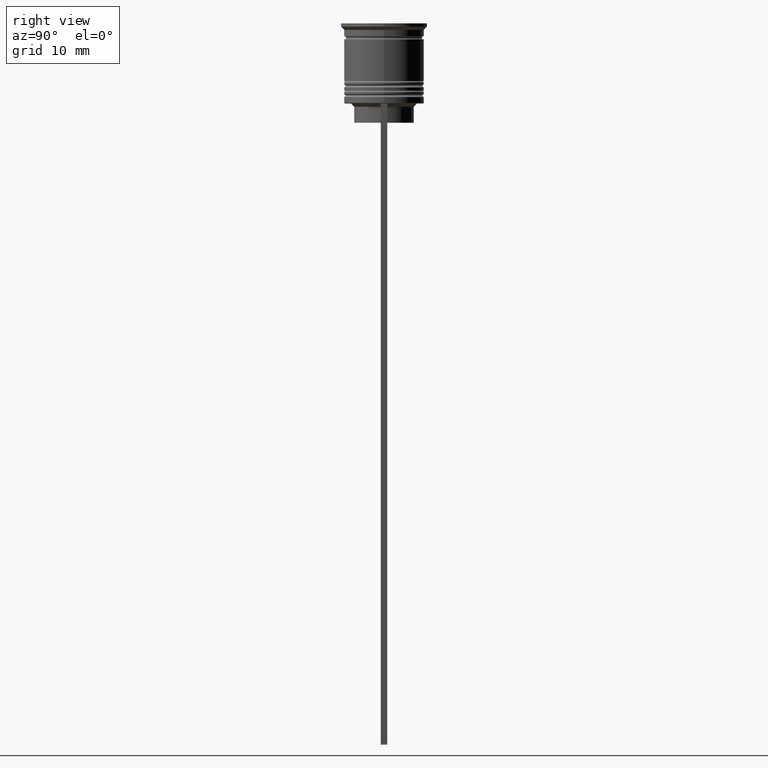
[diagram: clean part render]
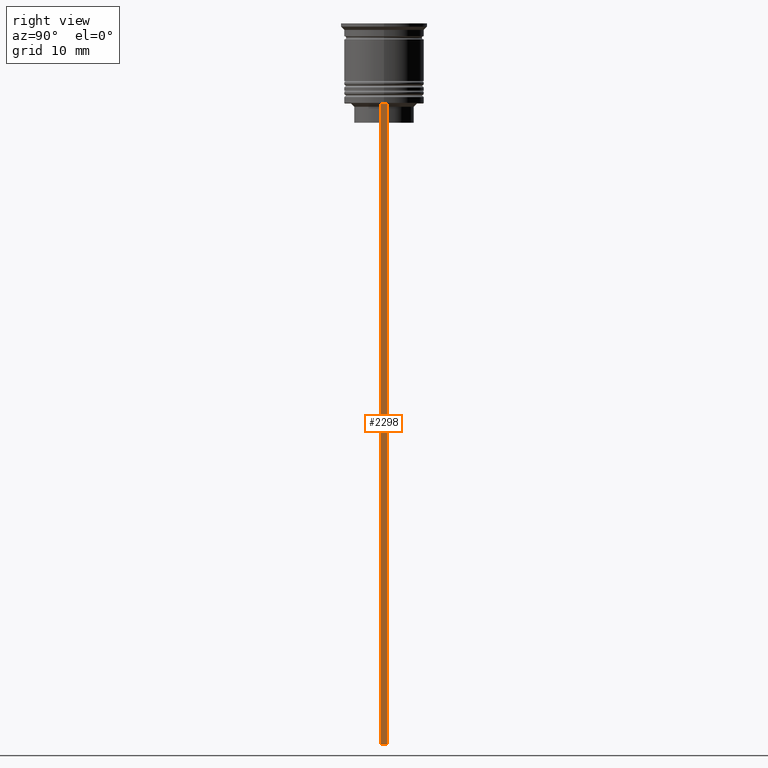
[diagram: same view with one face highlighted and labeled with its STEP entity id]
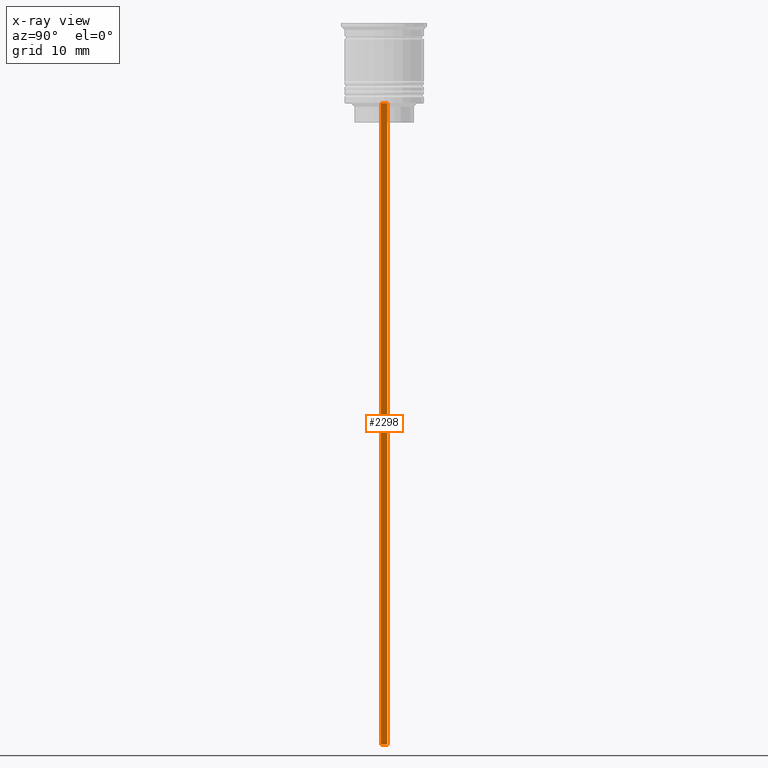
[diagram: x-ray of the same camera — body ghosted, the highlighted face saturated]
A machine part, right view. The second image highlights one B-rep face of the part: STEP entity #2298.
The next image is the same camera in x-ray: the body ghosted, the highlighted face saturated — about 0% of this face is hidden behind the body in this view.
In plain terms, the highlighted planar face has unit normal (-1, 0, 0).
Its self-contained STEP definition (entity closure, byte-faithful):
#139 = VECTOR ( 'NONE', #272, 1000.000000000000000 ) ;
#221 = DIRECTION ( 'NONE',  ( 0.000000000000000000, 0.000000000000000000, -1.000000000000000000 ) ) ;
#248 = AXIS2_PLACEMENT_3D ( 'NONE', #838, #1575, #1723 ) ;
#272 = DIRECTION ( 'NONE',  ( 0.000000000000000000, 1.000000000000000000, 0.000000000000000000 ) ) ;
#290 = VECTOR ( 'NONE', #1649, 1000.000000000000000 ) ;
#314 = ORIENTED_EDGE ( 'NONE', *, *, #2051, .T. ) ;
#531 = DIRECTION ( 'NONE',  ( 0.000000000000000000, -1.000000000000000000, 0.000000000000000000 ) ) ;
#620 = VECTOR ( 'NONE', #221, 1000.000000000000000 ) ;
#642 = CARTESIAN_POINT ( 'NONE',  ( 6.000000000000016875, 0.4999999999999982792, -12.50000000000000000 ) ) ;
#668 = EDGE_CURVE ( 'NONE', #1214, #863, #749, .T. ) ;
#686 = VERTEX_POINT ( 'NONE', #642 ) ;
#689 = ORIENTED_EDGE ( 'NONE', *, *, #668, .T. ) ;
#749 = LINE ( 'NONE', #1477, #139 ) ;
#779 = LINE ( 'NONE', #1130, #620 ) ;
#838 = CARTESIAN_POINT ( 'NONE',  ( 6.000000000000016875, -0.5000000000000017764, -0.4584054212077061097 ) ) ;
#852 = EDGE_CURVE ( 'NONE', #686, #925, #1595, .T. ) ;
#862 = CARTESIAN_POINT ( 'NONE',  ( 6.000000000000016875, -0.5000000000000017764, -112.5000000000000000 ) ) ;
#863 = VERTEX_POINT ( 'NONE', #2323 ) ;
#920 = CARTESIAN_POINT ( 'NONE',  ( 6.000000000000016875, -0.5000000000000017764, -0.4584054212077061097 ) ) ;
#925 = VERTEX_POINT ( 'NONE', #1810 ) ;
#1110 = VECTOR ( 'NONE', #531, 1000.000000000000000 ) ;
#1129 = ORIENTED_EDGE ( 'NONE', *, *, #852, .T. ) ;
#1130 = CARTESIAN_POINT ( 'NONE',  ( 6.000000000000016875, 0.4999999999999982792, -0.4584054212077061097 ) ) ;
#1214 = VERTEX_POINT ( 'NONE', #862 ) ;
#1262 = ORIENTED_EDGE ( 'NONE', *, *, #1385, .F. ) ;
#1385 = EDGE_CURVE ( 'NONE', #686, #863, #779, .T. ) ;
#1477 = CARTESIAN_POINT ( 'NONE',  ( 6.000000000000016875, -0.5000000000000017764, -112.5000000000000000 ) ) ;
#1575 = DIRECTION ( 'NONE',  ( -1.000000000000000000, 0.000000000000000000, 0.000000000000000000 ) ) ;
#1585 = PLANE ( 'NONE',  #248 ) ;
#1595 = LINE ( 'NONE', #1819, #1110 ) ;
#1636 = LINE ( 'NONE', #920, #290 ) ;
#1649 = DIRECTION ( 'NONE',  ( 0.000000000000000000, 0.000000000000000000, -1.000000000000000000 ) ) ;
#1688 = EDGE_LOOP ( 'NONE', ( #1262, #1129, #314, #689 ) ) ;
#1723 = DIRECTION ( 'NONE',  ( 0.000000000000000000, 0.000000000000000000, 1.000000000000000000 ) ) ;
#1810 = CARTESIAN_POINT ( 'NONE',  ( 6.000000000000016875, -0.5000000000000017764, -12.50000000000000000 ) ) ;
#1819 = CARTESIAN_POINT ( 'NONE',  ( 6.000000000000016875, -0.5000000000000017764, -12.50000000000000000 ) ) ;
#2051 = EDGE_CURVE ( 'NONE', #925, #1214, #1636, .T. ) ;
#2273 = FACE_OUTER_BOUND ( 'NONE', #1688, .T. ) ;
#2298 = ADVANCED_FACE ( 'NONE', ( #2273 ), #1585, .F. ) ;
#2323 = CARTESIAN_POINT ( 'NONE',  ( 6.000000000000016875, 0.4999999999999982792, -112.5000000000000000 ) ) ;